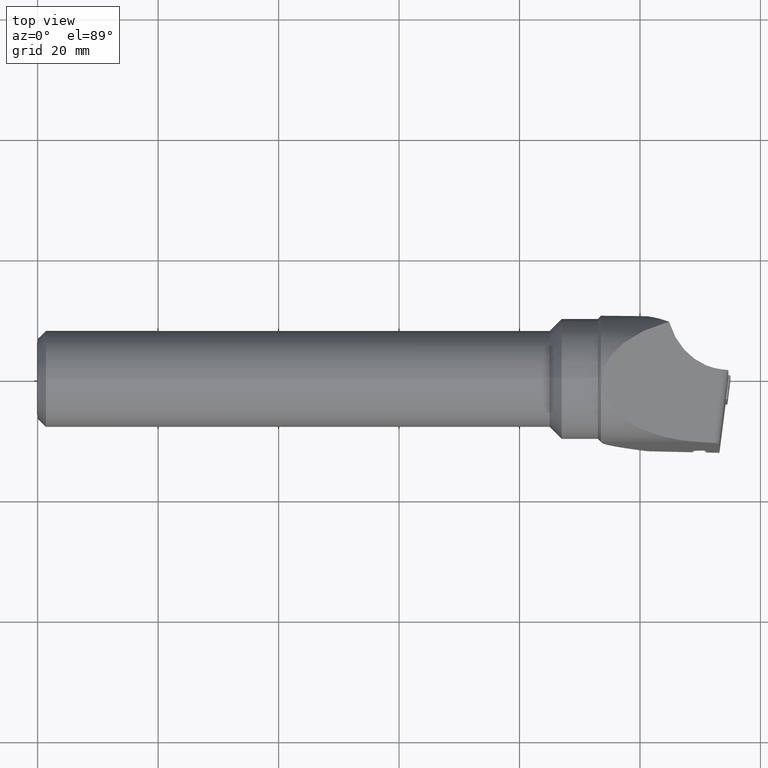
[diagram: clean part render]
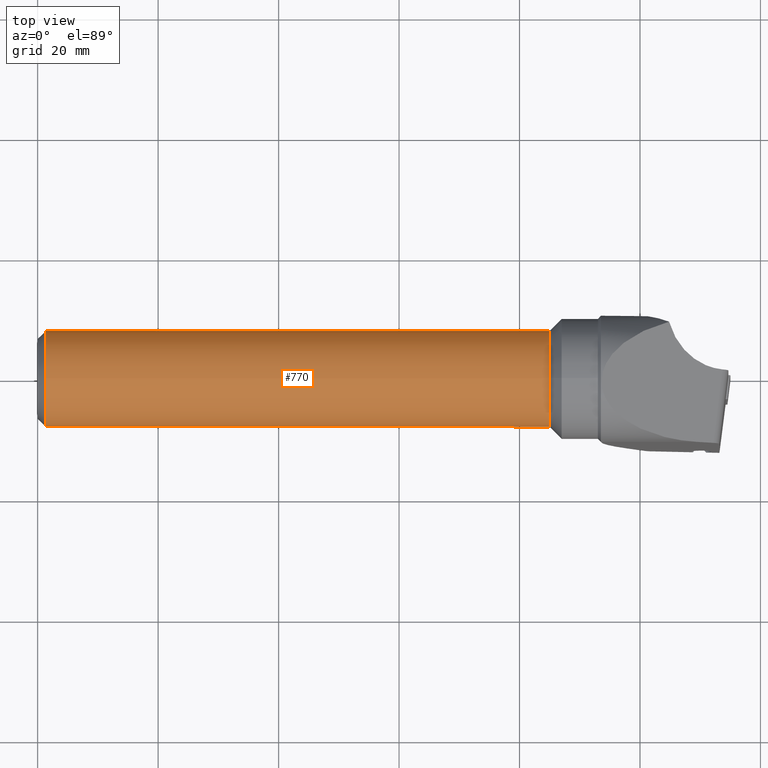
[diagram: same view with one face highlighted and labeled with its STEP entity id]
A machine part, top view. The second image highlights one B-rep face of the part: STEP entity #770.
In plain terms, the highlighted cylindrical surface (bore or boss wall) has radius 8 mm, axis along (-1, -0, -0).
Its self-contained STEP definition (entity closure, byte-faithful):
#36 = EDGE_CURVE ( 'NONE', #1879, #1350, #1414, .T. ) ;
#51 = AXIS2_PLACEMENT_3D ( 'NONE', #768, #2830, #2224 ) ;
#99 = ORIENTED_EDGE ( 'NONE', *, *, #2253, .T. ) ;
#119 = CARTESIAN_POINT ( 'NONE',  ( 59.50000000000000700, 5.055689863905817200, -6.199999999999997500 ) ) ;
#123 = CARTESIAN_POINT ( 'NONE',  ( 41.00588235294120700, -1.982623476041498500, -8.705882352941179300 ) ) ;
#150 =( BOUNDED_CURVE ( )  B_SPLINE_CURVE ( 3, ( #1561, #123, #3028, #1892 ),
 .UNSPECIFIED., .F., .F. ) 
 B_SPLINE_CURVE_WITH_KNOTS ( ( 4, 4 ),
 ( 2.457511421794463600, 3.825673885385122700 ),
 .UNSPECIFIED. ) 
 CURVE ( )  GEOMETRIC_REPRESENTATION_ITEM ( )  RATIONAL_B_SPLINE_CURVE ( ( 1.000000000000000000, 0.8499999999999998700, 0.8499999999999998700, 1.000000000000000000 ) ) 
 REPRESENTATION_ITEM ( '' )  );
#157 = EDGE_LOOP ( 'NONE', ( #3058, #3508, #1857, #2597 ) ) ;
#162 = EDGE_CURVE ( 'NONE', #482, #2632, #3221, .T. ) ;
#167 = CARTESIAN_POINT ( 'NONE',  ( 13.49411764705879200, -1.982623476041499600, -8.705882352941179300 ) ) ;
#174 = CARTESIAN_POINT ( 'NONE',  ( 70.00588235294121400, 1.982623476041497100, -8.705882352941179300 ) ) ;
#210 = VERTEX_POINT ( 'NONE', #3071 ) ;
#251 = CARTESIAN_POINT ( 'NONE',  ( 59.50000000000000700, 5.055689863905817200, -6.199999999999997500 ) ) ;
#270 = CARTESIAN_POINT ( 'NONE',  ( 26.50588235294121400, -1.982623476041498500, -8.705882352941179300 ) ) ;
#283 = LINE ( 'NONE', #982, #1388 ) ;
#296 = ORIENTED_EDGE ( 'NONE', *, *, #2612, .T. ) ;
#303 = CARTESIAN_POINT ( 'NONE',  ( 55.50588235294120700, -1.982623476041498500, -8.705882352941179300 ) ) ;
#323 = DIRECTION ( 'NONE',  ( 1.000000000000000000, 0.0000000000000000000, 0.0000000000000000000 ) ) ;
#337 = CARTESIAN_POINT ( 'NONE',  ( 30.50000000000000000, 5.055689863905817200, -6.199999999999997500 ) ) ;
#338 = VERTEX_POINT ( 'NONE', #2937 ) ;
#380 = CARTESIAN_POINT ( 'NONE',  ( 42.49411764705880800, 1.982623476041495600, -8.705882352941175700 ) ) ;
#390 = CARTESIAN_POINT ( 'NONE',  ( 45.00000000000000000, 5.055689863905813700, -6.199999999999997500 ) ) ;
#415 = VERTEX_POINT ( 'NONE', #1447 ) ;
#428 = CARTESIAN_POINT ( 'NONE',  ( 59.50000000000000700, -5.055689863905817200, -6.199999999999997500 ) ) ;
#446 = CARTESIAN_POINT ( 'NONE',  ( 67.50000000000000000, 5.055689863905820800, -6.199999999999997500 ) ) ;
#458 = CARTESIAN_POINT ( 'NONE',  ( 67.50000000000000000, -5.055689863905820800, -6.199999999999997500 ) ) ;
#470 = CARTESIAN_POINT ( 'NONE',  ( 45.00000000000000000, 5.055689863905813700, -6.199999999999997500 ) ) ;
#482 = VERTEX_POINT ( 'NONE', #3318 ) ;
#506 =( BOUNDED_CURVE ( )  B_SPLINE_CURVE ( 3, ( #458, #3443, #174, #446 ),
 .UNSPECIFIED., .F., .F. ) 
 B_SPLINE_CURVE_WITH_KNOTS ( ( 4, 4 ),
 ( 2.457511421794463100, 3.825673885385123100 ),
 .UNSPECIFIED. ) 
 CURVE ( )  GEOMETRIC_REPRESENTATION_ITEM ( )  RATIONAL_B_SPLINE_CURVE ( ( 1.000000000000000000, 0.8499999999999996400, 0.8499999999999996400, 1.000000000000000000 ) ) 
 REPRESENTATION_ITEM ( '' )  );
#528 = FACE_BOUND ( 'NONE', #1330, .T. ) ;
#558 = CARTESIAN_POINT ( 'NONE',  ( -3.175455607189903200, -5.055689863905819000, -6.199999999999997500 ) ) ;
#564 = CARTESIAN_POINT ( 'NONE',  ( -3.175455607189903200, 5.055689863905819000, -6.199999999999997500 ) ) ;
#602 = CARTESIAN_POINT ( 'NONE',  ( 85.00000000000000000, 0.0000000000000000000, 8.000000000000000000 ) ) ;
#603 = ORIENTED_EDGE ( 'NONE', *, *, #3329, .T. ) ;
#643 = CARTESIAN_POINT ( 'NONE',  ( -3.175455607189903200, -5.055689863905819000, -6.199999999999997500 ) ) ;
#644 = CARTESIAN_POINT ( 'NONE',  ( -3.175455607189902700, 5.055689863905819000, -6.199999999999997500 ) ) ;
#649 = VECTOR ( 'NONE', #1707, 1000.000000000000000 ) ;
#659 = DIRECTION ( 'NONE',  ( -1.000000000000000000, -0.0000000000000000000, -0.0000000000000000000 ) ) ;
#661 = CARTESIAN_POINT ( 'NONE',  ( 27.99411764705879700, 1.982623476041499400, -8.705882352941179300 ) ) ;
#678 = EDGE_CURVE ( 'NONE', #2875, #3782, #283, .T. ) ;
#713 = CARTESIAN_POINT ( 'NONE',  ( 56.99411764705881500, -1.982623476041497100, -8.705882352941179300 ) ) ;
#726 = EDGE_CURVE ( 'NONE', #3250, #2875, #150, .T. ) ;
#768 = CARTESIAN_POINT ( 'NONE',  ( 85.00000000000000000, 0.0000000000000000000, 0.0000000000000000000 ) ) ;
#770 = ADVANCED_FACE ( 'NONE', ( #1629, #528, #1342, #1201, #1118, #1806 ), #3829, .T. ) ;
#850 = CARTESIAN_POINT ( 'NONE',  ( 26.50588235294120700, 1.982623476041496000, -8.705882352941179300 ) ) ;
#914 = DIRECTION ( 'NONE',  ( -1.000000000000000000, -0.0000000000000000000, -0.0000000000000000000 ) ) ;
#972 = ORIENTED_EDGE ( 'NONE', *, *, #1247, .T. ) ;
#982 = CARTESIAN_POINT ( 'NONE',  ( -3.175455607189903200, 5.055689863905819000, -6.199999999999997500 ) ) ;
#1003 = CARTESIAN_POINT ( 'NONE',  ( 16.00000000000000000, 5.055689863905820800, -6.199999999999997500 ) ) ;
#1012 = CARTESIAN_POINT ( 'NONE',  ( 16.00000000000000000, -5.055689863905820800, -6.199999999999997500 ) ) ;
#1013 = EDGE_CURVE ( 'NONE', #2234, #2474, #3683, .T. ) ;
#1018 = DIRECTION ( 'NONE',  ( -1.000000000000000000, -0.0000000000000000000, -0.0000000000000000000 ) ) ;
#1027 = VERTEX_POINT ( 'NONE', #2574 ) ;
#1074 = ORIENTED_EDGE ( 'NONE', *, *, #36, .T. ) ;
#1095 = VERTEX_POINT ( 'NONE', #602 ) ;
#1116 = EDGE_CURVE ( 'NONE', #3782, #1683, #1459, .T. ) ;
#1118 = FACE_OUTER_BOUND ( 'NONE', #157, .T. ) ;
#1135 = CARTESIAN_POINT ( 'NONE',  ( 30.50000000000000000, 5.055689863905817200, -6.199999999999997500 ) ) ;
#1173 =( BOUNDED_CURVE ( )  B_SPLINE_CURVE ( 3, ( #390, #380, #1537, #3007 ),
 .UNSPECIFIED., .F., .F. ) 
 B_SPLINE_CURVE_WITH_KNOTS ( ( 4, 4 ),
 ( 5.599104075384257600, 6.967266538974914900 ),
 .UNSPECIFIED. ) 
 CURVE ( )  GEOMETRIC_REPRESENTATION_ITEM ( )  RATIONAL_B_SPLINE_CURVE ( ( 1.000000000000000000, 0.8500000000000002000, 0.8500000000000002000, 1.000000000000000000 ) ) 
 REPRESENTATION_ITEM ( '' )  );
#1187 = CARTESIAN_POINT ( 'NONE',  ( 38.50000000000000000, -5.055689863905820800, -6.199999999999997500 ) ) ;
#1201 = FACE_BOUND ( 'NONE', #3386, .T. ) ;
#1247 = EDGE_CURVE ( 'NONE', #1508, #3802, #1914, .T. ) ;
#1249 = CARTESIAN_POINT ( 'NONE',  ( 30.50000000000000000, -5.055689863905817200, -6.199999999999997500 ) ) ;
#1329 = CIRCLE ( 'NONE', #2117, 8.000000000000000000 ) ;
#1330 = EDGE_LOOP ( 'NONE', ( #3730, #1719, #1074, #2279 ) ) ;
#1335 = CARTESIAN_POINT ( 'NONE',  ( 1.375000000000003600, 5.055689863905846500, -6.199999999999997500 ) ) ;
#1339 = CARTESIAN_POINT ( 'NONE',  ( 16.00000000000000000, -5.055689863905820800, -6.199999999999997500 ) ) ;
#1342 = FACE_BOUND ( 'NONE', #3166, .T. ) ;
#1350 = VERTEX_POINT ( 'NONE', #470 ) ;
#1373 = ORIENTED_EDGE ( 'NONE', *, *, #1907, .T. ) ;
#1388 = VECTOR ( 'NONE', #3731, 1000.000000000000000 ) ;
#1393 = AXIS2_PLACEMENT_3D ( 'NONE', #2769, #1018, #3072 ) ;
#1414 = LINE ( 'NONE', #564, #2805 ) ;
#1429 = CARTESIAN_POINT ( 'NONE',  ( 67.50000000000000000, 5.055689863905820800, -6.199999999999997500 ) ) ;
#1447 = CARTESIAN_POINT ( 'NONE',  ( 45.00000000000000000, -5.055689863905813700, -6.199999999999997500 ) ) ;
#1453 = EDGE_CURVE ( 'NONE', #2437, #210, #2503, .T. ) ;
#1459 =( BOUNDED_CURVE ( )  B_SPLINE_CURVE ( 3, ( #337, #661, #2737, #1249 ),
 .UNSPECIFIED., .F., .F. ) 
 B_SPLINE_CURVE_WITH_KNOTS ( ( 4, 4 ),
 ( 5.599104075384256700, 6.967266538974915800 ),
 .UNSPECIFIED. ) 
 CURVE ( )  GEOMETRIC_REPRESENTATION_ITEM ( )  RATIONAL_B_SPLINE_CURVE ( ( 1.000000000000000000, 0.8499999999999998700, 0.8499999999999998700, 1.000000000000000000 ) ) 
 REPRESENTATION_ITEM ( '' )  );
#1508 = VERTEX_POINT ( 'NONE', #251 ) ;
#1529 = DIRECTION ( 'NONE',  ( 0.0000000000000000000, 0.0000000000000000000, 1.000000000000000000 ) ) ;
#1537 = CARTESIAN_POINT ( 'NONE',  ( 42.49411764705880800, -1.982623476041494200, -8.705882352941175700 ) ) ;
#1543 = CARTESIAN_POINT ( 'NONE',  ( 9.499999999999998200, -5.055689863905820800, -6.199999999999996600 ) ) ;
#1561 = CARTESIAN_POINT ( 'NONE',  ( 38.50000000000000000, -5.055689863905820800, -6.199999999999997500 ) ) ;
#1564 = EDGE_CURVE ( 'NONE', #1933, #1508, #2949, .T. ) ;
#1629 = FACE_BOUND ( 'NONE', #3621, .T. ) ;
#1677 = EDGE_CURVE ( 'NONE', #1350, #415, #1173, .T. ) ;
#1683 = VERTEX_POINT ( 'NONE', #1755 ) ;
#1707 = DIRECTION ( 'NONE',  ( 1.000000000000000000, 0.0000000000000000000, 0.0000000000000000000 ) ) ;
#1719 = ORIENTED_EDGE ( 'NONE', *, *, #3244, .T. ) ;
#1755 = CARTESIAN_POINT ( 'NONE',  ( 30.50000000000000000, -5.055689863905817200, -6.199999999999997500 ) ) ;
#1756 = CARTESIAN_POINT ( 'NONE',  ( 67.50000000000000000, -5.055689863905820800, -6.199999999999997500 ) ) ;
#1778 = EDGE_CURVE ( 'NONE', #2632, #2234, #2950, .T. ) ;
#1794 = CARTESIAN_POINT ( 'NONE',  ( -3.175455607189903200, 5.055689863905819000, -6.199999999999997500 ) ) ;
#1806 = FACE_OUTER_BOUND ( 'NONE', #3046, .T. ) ;
#1857 = ORIENTED_EDGE ( 'NONE', *, *, #2368, .F. ) ;
#1868 = VECTOR ( 'NONE', #914, 1000.000000000000000 ) ;
#1879 = VERTEX_POINT ( 'NONE', #1967 ) ;
#1892 = CARTESIAN_POINT ( 'NONE',  ( 38.50000000000000000, 5.055689863905820800, -6.199999999999997500 ) ) ;
#1905 = ORIENTED_EDGE ( 'NONE', *, *, #1564, .T. ) ;
#1907 = EDGE_CURVE ( 'NONE', #3802, #3837, #2217, .T. ) ;
#1914 =( BOUNDED_CURVE ( )  B_SPLINE_CURVE ( 3, ( #119, #3693, #713, #428 ),
 .UNSPECIFIED., .F., .F. ) 
 B_SPLINE_CURVE_WITH_KNOTS ( ( 4, 4 ),
 ( 5.599104075384256700, 6.967266538974915800 ),
 .UNSPECIFIED. ) 
 CURVE ( )  GEOMETRIC_REPRESENTATION_ITEM ( )  RATIONAL_B_SPLINE_CURVE ( ( 1.000000000000000000, 0.8499999999999998700, 0.8499999999999998700, 1.000000000000000000 ) ) 
 REPRESENTATION_ITEM ( '' )  );
#1933 = VERTEX_POINT ( 'NONE', #1429 ) ;
#1934 = ORIENTED_EDGE ( 'NONE', *, *, #678, .T. ) ;
#1967 = CARTESIAN_POINT ( 'NONE',  ( 53.00000000000000700, 5.055689863905820800, -6.199999999999997500 ) ) ;
#1977 = EDGE_CURVE ( 'NONE', #2474, #482, #3801, .T. ) ;
#2002 = CARTESIAN_POINT ( 'NONE',  ( 24.00000000000000000, 5.055689863905820800, -6.199999999999997500 ) ) ;
#2016 = DIRECTION ( 'NONE',  ( -1.000000000000000000, -0.0000000000000000000, -0.0000000000000000000 ) ) ;
#2023 = EDGE_CURVE ( 'NONE', #1027, #2437, #2480, .T. ) ;
#2053 = LINE ( 'NONE', #558, #3325 ) ;
#2088 = ORIENTED_EDGE ( 'NONE', *, *, #162, .T. ) ;
#2117 = AXIS2_PLACEMENT_3D ( 'NONE', #2686, #659, #1529 ) ;
#2217 = LINE ( 'NONE', #2552, #649 ) ;
#2224 = DIRECTION ( 'NONE',  ( 0.0000000000000000000, 0.0000000000000000000, 1.000000000000000000 ) ) ;
#2234 = VERTEX_POINT ( 'NONE', #1012 ) ;
#2253 = EDGE_CURVE ( 'NONE', #3837, #1933, #506, .T. ) ;
#2279 = ORIENTED_EDGE ( 'NONE', *, *, #1677, .T. ) ;
#2282 = DIRECTION ( 'NONE',  ( 1.000000000000000000, 0.0000000000000000000, 0.0000000000000000000 ) ) ;
#2307 = CARTESIAN_POINT ( 'NONE',  ( 24.00000000000000000, -5.055689863905820800, -6.199999999999997500 ) ) ;
#2312 = CARTESIAN_POINT ( 'NONE',  ( 12.00588235294117800, 1.982623476041497100, -8.705882352941177500 ) ) ;
#2368 = EDGE_CURVE ( 'NONE', #1027, #3062, #1329, .T. ) ;
#2411 = EDGE_CURVE ( 'NONE', #210, #3062, #3528, .T. ) ;
#2437 = VERTEX_POINT ( 'NONE', #1543 ) ;
#2448 = CARTESIAN_POINT ( 'NONE',  ( -3.175455607189902700, -5.055689863905819000, -6.199999999999997500 ) ) ;
#2474 = VERTEX_POINT ( 'NONE', #3262 ) ;
#2480 = LINE ( 'NONE', #2448, #3231 ) ;
#2503 =( BOUNDED_CURVE ( )  B_SPLINE_CURVE ( 3, ( #3188, #3526, #2312, #3219 ),
 .UNSPECIFIED., .F., .F. ) 
 B_SPLINE_CURVE_WITH_KNOTS ( ( 4, 4 ),
 ( 2.457511421794463100, 3.825673885385123100 ),
 .UNSPECIFIED. ) 
 CURVE ( )  GEOMETRIC_REPRESENTATION_ITEM ( )  RATIONAL_B_SPLINE_CURVE ( ( 1.000000000000000000, 0.8499999999999996400, 0.8499999999999996400, 1.000000000000000000 ) ) 
 REPRESENTATION_ITEM ( '' )  );
#2552 = CARTESIAN_POINT ( 'NONE',  ( -3.175455607189903200, -5.055689863905819000, -6.199999999999997500 ) ) ;
#2574 = CARTESIAN_POINT ( 'NONE',  ( 1.374999999999999600, -5.055689863905819000, -6.199999999999997500 ) ) ;
#2583 = VECTOR ( 'NONE', #323, 1000.000000000000000 ) ;
#2592 = CARTESIAN_POINT ( 'NONE',  ( 59.50000000000000700, -5.055689863905817200, -6.199999999999997500 ) ) ;
#2597 = ORIENTED_EDGE ( 'NONE', *, *, #2023, .T. ) ;
#2612 = EDGE_CURVE ( 'NONE', #1095, #1095, #3034, .T. ) ;
#2613 = LINE ( 'NONE', #643, #3227 ) ;
#2632 = VERTEX_POINT ( 'NONE', #3419 ) ;
#2680 = CARTESIAN_POINT ( 'NONE',  ( -3.175455607189903200, 5.055689863905819000, -6.199999999999997500 ) ) ;
#2686 = CARTESIAN_POINT ( 'NONE',  ( 1.374999999999999600, 0.0000000000000000000, 0.0000000000000000000 ) ) ;
#2699 = DIRECTION ( 'NONE',  ( 1.000000000000000000, 0.0000000000000000000, 0.0000000000000000000 ) ) ;
#2737 = CARTESIAN_POINT ( 'NONE',  ( 27.99411764705879700, -1.982623476041497100, -8.705882352941179300 ) ) ;
#2769 = CARTESIAN_POINT ( 'NONE',  ( -3.175455607189903200, 0.0000000000000000000, 0.0000000000000000000 ) ) ;
#2805 = VECTOR ( 'NONE', #2016, 1000.000000000000000 ) ;
#2830 = DIRECTION ( 'NONE',  ( -1.000000000000000000, -0.0000000000000000000, -0.0000000000000000000 ) ) ;
#2875 = VERTEX_POINT ( 'NONE', #3522 ) ;
#2937 = CARTESIAN_POINT ( 'NONE',  ( 53.00000000000000700, -5.055689863905820800, -6.199999999999997500 ) ) ;
#2941 = CARTESIAN_POINT ( 'NONE',  ( 53.00000000000000700, -5.055689863905820800, -6.199999999999997500 ) ) ;
#2949 = LINE ( 'NONE', #1794, #3633 ) ;
#2950 =( BOUNDED_CURVE ( )  B_SPLINE_CURVE ( 3, ( #1003, #3122, #167, #1339 ),
 .UNSPECIFIED., .F., .F. ) 
 B_SPLINE_CURVE_WITH_KNOTS ( ( 4, 4 ),
 ( 5.599104075384255800, 6.967266538974916700 ),
 .UNSPECIFIED. ) 
 CURVE ( )  GEOMETRIC_REPRESENTATION_ITEM ( )  RATIONAL_B_SPLINE_CURVE ( ( 1.000000000000000000, 0.8499999999999994200, 0.8499999999999994200, 1.000000000000000000 ) ) 
 REPRESENTATION_ITEM ( '' )  );
#2972 = DIRECTION ( 'NONE',  ( -1.000000000000000000, -0.0000000000000000000, -0.0000000000000000000 ) ) ;
#3007 = CARTESIAN_POINT ( 'NONE',  ( 45.00000000000000000, -5.055689863905813700, -6.199999999999997500 ) ) ;
#3028 = CARTESIAN_POINT ( 'NONE',  ( 41.00588235294120700, 1.982623476041496000, -8.705882352941179300 ) ) ;
#3034 = CIRCLE ( 'NONE', #51, 8.000000000000000000 ) ;
#3046 = EDGE_LOOP ( 'NONE', ( #296 ) ) ;
#3058 = ORIENTED_EDGE ( 'NONE', *, *, #1453, .T. ) ;
#3062 = VERTEX_POINT ( 'NONE', #1335 ) ;
#3066 = DIRECTION ( 'NONE',  ( 1.000000000000000000, 0.0000000000000000000, 0.0000000000000000000 ) ) ;
#3071 = CARTESIAN_POINT ( 'NONE',  ( 9.499999999999998200, 5.055689863905820800, -6.199999999999996600 ) ) ;
#3072 = DIRECTION ( 'NONE',  ( 0.0000000000000000000, 0.0000000000000000000, 1.000000000000000000 ) ) ;
#3093 = VECTOR ( 'NONE', #2972, 1000.000000000000000 ) ;
#3122 = CARTESIAN_POINT ( 'NONE',  ( 13.49411764705879200, 1.982623476041502900, -8.705882352941179300 ) ) ;
#3123 = ORIENTED_EDGE ( 'NONE', *, *, #726, .T. ) ;
#3162 = EDGE_CURVE ( 'NONE', #415, #338, #2053, .T. ) ;
#3166 = EDGE_LOOP ( 'NONE', ( #603, #3123, #1934, #3492 ) ) ;
#3188 = CARTESIAN_POINT ( 'NONE',  ( 9.499999999999998200, -5.055689863905820800, -6.199999999999996600 ) ) ;
#3219 = CARTESIAN_POINT ( 'NONE',  ( 9.499999999999998200, 5.055689863905820800, -6.199999999999996600 ) ) ;
#3221 = LINE ( 'NONE', #2680, #1868 ) ;
#3227 = VECTOR ( 'NONE', #2699, 1000.000000000000000 ) ;
#3231 = VECTOR ( 'NONE', #3066, 1000.000000000000000 ) ;
#3244 = EDGE_CURVE ( 'NONE', #338, #1879, #3819, .T. ) ;
#3250 = VERTEX_POINT ( 'NONE', #1187 ) ;
#3251 = CARTESIAN_POINT ( 'NONE',  ( 55.50588235294120700, 1.982623476041496000, -8.705882352941179300 ) ) ;
#3262 = CARTESIAN_POINT ( 'NONE',  ( 24.00000000000000000, -5.055689863905820800, -6.199999999999997500 ) ) ;
#3318 = CARTESIAN_POINT ( 'NONE',  ( 24.00000000000000000, 5.055689863905820800, -6.199999999999997500 ) ) ;
#3325 = VECTOR ( 'NONE', #2282, 1000.000000000000000 ) ;
#3329 = EDGE_CURVE ( 'NONE', #1683, #3250, #2613, .T. ) ;
#3377 = ORIENTED_EDGE ( 'NONE', *, *, #1778, .T. ) ;
#3386 = EDGE_LOOP ( 'NONE', ( #3576, #3455, #2088, #3377 ) ) ;
#3419 = CARTESIAN_POINT ( 'NONE',  ( 16.00000000000000000, 5.055689863905820800, -6.199999999999997500 ) ) ;
#3443 = CARTESIAN_POINT ( 'NONE',  ( 70.00588235294121400, -1.982623476041499600, -8.705882352941177500 ) ) ;
#3455 = ORIENTED_EDGE ( 'NONE', *, *, #1977, .T. ) ;
#3492 = ORIENTED_EDGE ( 'NONE', *, *, #1116, .T. ) ;
#3508 = ORIENTED_EDGE ( 'NONE', *, *, #2411, .T. ) ;
#3522 = CARTESIAN_POINT ( 'NONE',  ( 38.50000000000000000, 5.055689863905820800, -6.199999999999997500 ) ) ;
#3526 = CARTESIAN_POINT ( 'NONE',  ( 12.00588235294117800, -1.982623476041499600, -8.705882352941177500 ) ) ;
#3528 = LINE ( 'NONE', #644, #3093 ) ;
#3552 = DIRECTION ( 'NONE',  ( -1.000000000000000000, -0.0000000000000000000, -0.0000000000000000000 ) ) ;
#3576 = ORIENTED_EDGE ( 'NONE', *, *, #1013, .T. ) ;
#3583 = CARTESIAN_POINT ( 'NONE',  ( 53.00000000000000700, 5.055689863905820800, -6.199999999999997500 ) ) ;
#3621 = EDGE_LOOP ( 'NONE', ( #1373, #99, #1905, #972 ) ) ;
#3633 = VECTOR ( 'NONE', #3552, 1000.000000000000000 ) ;
#3683 = LINE ( 'NONE', #3849, #2583 ) ;
#3693 = CARTESIAN_POINT ( 'NONE',  ( 56.99411764705881500, 1.982623476041499400, -8.705882352941179300 ) ) ;
#3730 = ORIENTED_EDGE ( 'NONE', *, *, #3162, .T. ) ;
#3731 = DIRECTION ( 'NONE',  ( -1.000000000000000000, -0.0000000000000000000, -0.0000000000000000000 ) ) ;
#3782 = VERTEX_POINT ( 'NONE', #1135 ) ;
#3801 =( BOUNDED_CURVE ( )  B_SPLINE_CURVE ( 3, ( #2307, #270, #850, #2002 ),
 .UNSPECIFIED., .F., .F. ) 
 B_SPLINE_CURVE_WITH_KNOTS ( ( 4, 4 ),
 ( 2.457511421794463600, 3.825673885385122700 ),
 .UNSPECIFIED. ) 
 CURVE ( )  GEOMETRIC_REPRESENTATION_ITEM ( )  RATIONAL_B_SPLINE_CURVE ( ( 1.000000000000000000, 0.8499999999999998700, 0.8499999999999998700, 1.000000000000000000 ) ) 
 REPRESENTATION_ITEM ( '' )  );
#3802 = VERTEX_POINT ( 'NONE', #2592 ) ;
#3819 =( BOUNDED_CURVE ( )  B_SPLINE_CURVE ( 3, ( #2941, #303, #3251, #3583 ),
 .UNSPECIFIED., .F., .T. ) 
 B_SPLINE_CURVE_WITH_KNOTS ( ( 4, 4 ),
 ( 2.457511421794463600, 3.825673885385122700 ),
 .UNSPECIFIED. ) 
 CURVE ( )  GEOMETRIC_REPRESENTATION_ITEM ( )  RATIONAL_B_SPLINE_CURVE ( ( 1.000000000000000000, 0.8499999999999998700, 0.8499999999999998700, 1.000000000000000000 ) ) 
 REPRESENTATION_ITEM ( '' )  );
#3829 = CYLINDRICAL_SURFACE ( 'NONE', #1393, 8.000000000000000000 ) ;
#3837 = VERTEX_POINT ( 'NONE', #1756 ) ;
#3849 = CARTESIAN_POINT ( 'NONE',  ( -3.175455607189903200, -5.055689863905819000, -6.199999999999997500 ) ) ;